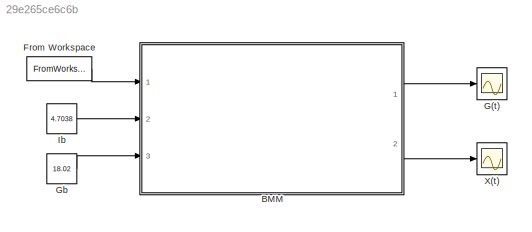
MODEL slx_29e265ce6c6b
KIND model
CONFIG AbsTol = auto
CONFIG EnableMultiTasking = off
CONFIG FixedStep = 1
CONFIG MaxStep = auto
CONFIG MinStep = auto
CONFIG RelTol = 1e-3
CONFIG SampleTimeConstraint = Unconstrained
CONFIG SolverName = FixedStepAuto
CONFIG StartTime = 0.0
CONFIG StopTime = 180
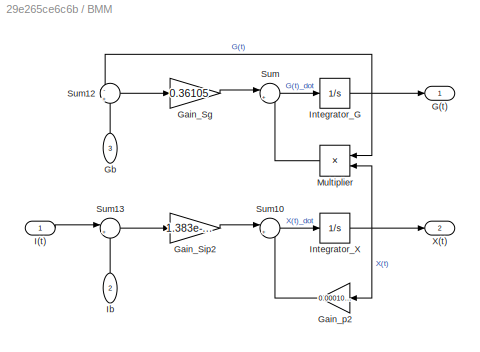
BLOCK [SubSystem] BMM
  Ports = [3, 2]
  RequestExecContextInheritance = off
BLOCK [Outport] BMM/G(t)
BLOCK [Gain] BMM/Gain_Sg
  Gain = 0.36105
  Multiplication = Matrix(K*u)
BLOCK [Gain] BMM/Gain_Sip2
  Gain = 1.383e-06
  Multiplication = Matrix(K*u)
BLOCK [Gain] BMM/Gain_p2
  Gain = 0.0001016
BLOCK [Inport] BMM/Gb
  NameLocation = right
  Port = 3
BLOCK [Inport] BMM/I(t)
BLOCK [Inport] BMM/Ib
  NameLocation = right
  Port = 2
BLOCK [Integrator] BMM/Integrator_G
  InitialCondition = 16
  LimitOutput = on
  Ports = [1, 1]
  UpperSaturationLimit = 100
BLOCK [Integrator] BMM/Integrator_X
  Ports = [1, 1]
BLOCK [Product] BMM/Multiplier
  Ports = [2, 1]
BLOCK [Sum] BMM/Sum
  Inputs = |+-
  Ports = [2, 1]
BLOCK [Sum] BMM/Sum10
  Inputs = |+-
  Ports = [2, 1]
BLOCK [Sum] BMM/Sum12
  Inputs = -|+
  Ports = [2, 1]
BLOCK [Sum] BMM/Sum13
  Inputs = |+-
  Ports = [2, 1]
BLOCK [Outport] BMM/X(t)
  Port = 2
BLOCK [FromWorkspace] From Workspace
  VariableName = input_sim
BLOCK [Scope] G(t)
  Floating = off
  NumInputPorts = 1
  Ports = [1]
  ScopeSpecificationString = Simulink.scopes.TimeScopeBlockCfg('CurrentConfiguration', extmgr.ConfigurationSet(extmgr.Configuration('Core','General UI',true),extmgr.Configuration('Core','Source UI',true),extmgr.Configuration('Sources','WiredSimulink',true,'DataLoggingVariableName','OutData','DataLogging',true,'DataLoggingSaveFormat','Array'),extmgr.Configuration('Visuals','Time Domain',true,'SerializedDisplays',{struct('MinYL...<+1489ch>
BLOCK [Constant] Gb
  SampleTime = 0
  Value = 18.02
BLOCK [Constant] Ib
  SampleTime = 0
  Value = 4.7038
BLOCK [Scope] X(t)
  Floating = off
  NumInputPorts = 1
  Ports = [1]
  ScopeSpecificationString = Simulink.scopes.TimeScopeBlockCfg('CurrentConfiguration', extmgr.ConfigurationSet(extmgr.Configuration('Core','General UI',true),extmgr.Configuration('Core','Source UI',true),extmgr.Configuration('Sources','WiredSimulink',true,'DataLoggingVariableName','ScopeData8'),extmgr.Configuration('Visuals','Time Domain',true,'SerializedDisplays',{struct('MinYLimReal','-0.00312','MaxYLimReal','0.00152','YLab...<+1422ch>
LINE BMM/Gain_Sg:1 -> BMM/Sum:1
LINE BMM/Gain_Sip2:1 -> BMM/Sum10:1
LINE BMM/Gain_p2:1 -> BMM/Sum10:2
LINE BMM/Gb:1 -> BMM/Sum12:2
LINE BMM/I(t):1 -> BMM/Sum13:1
LINE BMM/Ib:1 -> BMM/Sum13:2
NET BMM/Integrator_G:1 -> BMM/G(t):1, BMM/Multiplier:1, BMM/Sum12:1
NET BMM/Integrator_X:1 -> BMM/Gain_p2:1, BMM/Multiplier:2, BMM/X(t):1
LINE BMM/Multiplier:1 -> BMM/Sum:2
LINE BMM/Sum10:1 -> BMM/Integrator_X:1
LINE BMM/Sum12:1 -> BMM/Gain_Sg:1
LINE BMM/Sum13:1 -> BMM/Gain_Sip2:1
LINE BMM/Sum:1 -> BMM/Integrator_G:1
LINE BMM:1 -> G(t):1
LINE BMM:2 -> X(t):1
LINE From Workspace:1 -> BMM:1
LINE Gb:1 -> BMM:3
LINE Ib:1 -> BMM:2
note: NET lines group one-source signal fan-out (src -> all destinations, sorted); 1:1 wires keep LINE
